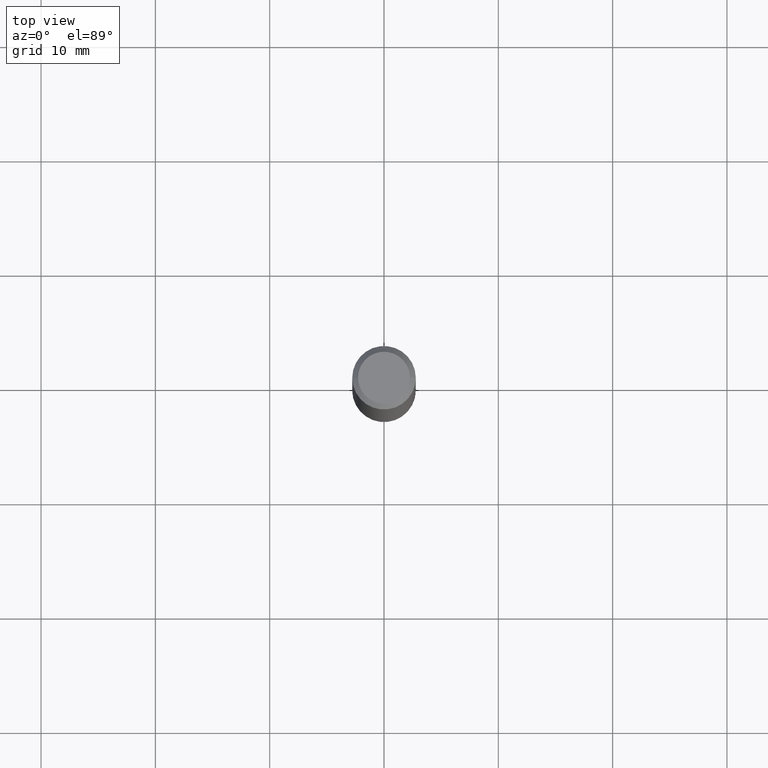
[diagram: clean part render]
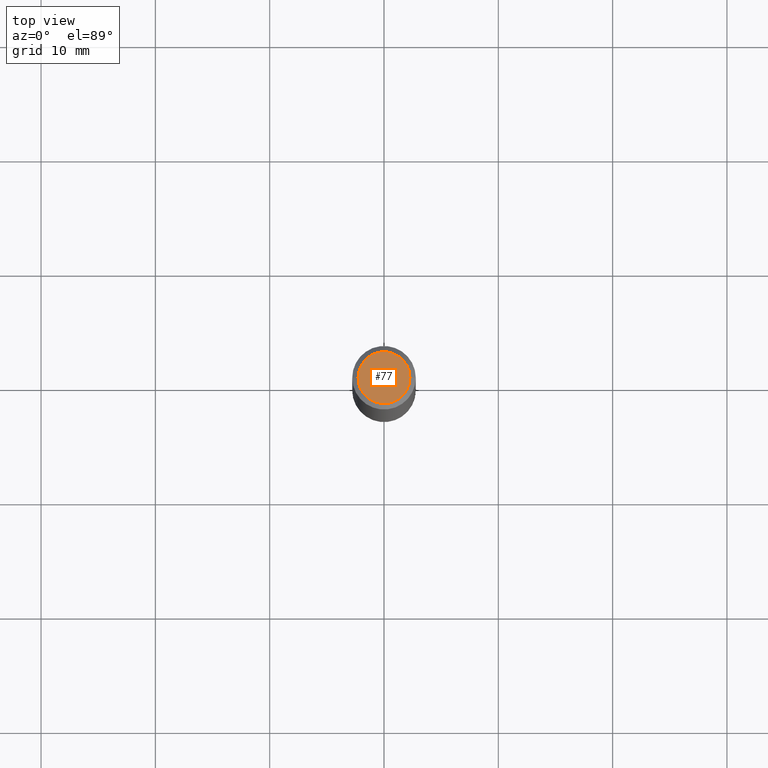
[diagram: same view with one face highlighted and labeled with its STEP entity id]
A machine part, top view. The second image highlights one B-rep face of the part: STEP entity #77.
In plain terms, the highlighted planar face has unit normal (0, -0, -1).
Its self-contained STEP definition (entity closure, byte-faithful):
#1 = DIRECTION ( 'NONE',  ( 2.438088387897960049E-29, -3.491481338843145188E-15, -1.000000000000000000 ) ) ;
#5 = PLANE ( 'NONE',  #42 ) ;
#7 = DIRECTION ( 'NONE',  ( -1.000000000000000000, 6.982962677686265922E-15, -4.876176775795935793E-29 ) ) ;
#42 = AXIS2_PLACEMENT_3D ( 'NONE', #246, #1, #7 ) ;
#50 = CARTESIAN_POINT ( 'NONE',  ( 0.08939999999999979907, -7.168483143669202998E-16, 4.689111625122773935E-30 ) ) ;
#58 = EDGE_LOOP ( 'NONE', ( #278, #378 ) ) ;
#74 = AXIS2_PLACEMENT_3D ( 'NONE', #210, #331, #79 ) ;
#77 = ADVANCED_FACE ( 'NONE', ( #283 ), #5, .F. ) ;
#79 = DIRECTION ( 'NONE',  ( 1.000000000000000000, -6.982962677686267499E-15, 4.876176775795935232E-29 ) ) ;
#120 = VERTEX_POINT ( 'NONE', #50 ) ;
#139 = AXIS2_PLACEMENT_3D ( 'NONE', #296, #346, #354 ) ;
#167 = EDGE_CURVE ( 'NONE', #120, #338, #207, .T. ) ;
#207 = CIRCLE ( 'NONE', #139, 0.08939999999999979907 ) ;
#210 = CARTESIAN_POINT ( 'NONE',  ( 0.000000000000000000, 0.000000000000000000, 0.000000000000000000 ) ) ;
#246 = CARTESIAN_POINT ( 'NONE',  ( 6.242768633851507782E-16, 0.08939999999999979907, -3.121384316925765724E-16 ) ) ;
#275 = CIRCLE ( 'NONE', #74, 0.08939999999999979907 ) ;
#278 = ORIENTED_EDGE ( 'NONE', *, *, #284, .T. ) ;
#283 = FACE_OUTER_BOUND ( 'NONE', #58, .T. ) ;
#284 = EDGE_CURVE ( 'NONE', #338, #120, #275, .T. ) ;
#296 = CARTESIAN_POINT ( 'NONE',  ( 0.000000000000000000, 0.000000000000000000, 0.000000000000000000 ) ) ;
#307 = CARTESIAN_POINT ( 'NONE',  ( -0.08939999999999979907, 6.591916767735819343E-16, -4.487804550905191468E-30 ) ) ;
#331 = DIRECTION ( 'NONE',  ( -2.445468806185136597E-29, 3.491481338843145583E-15, 1.000000000000000000 ) ) ;
#338 = VERTEX_POINT ( 'NONE', #307 ) ;
#346 = DIRECTION ( 'NONE',  ( -2.445468806185136597E-29, 3.491481338843145583E-15, 1.000000000000000000 ) ) ;
#354 = DIRECTION ( 'NONE',  ( 1.000000000000000000, -6.982962677686267499E-15, 4.876176775795935232E-29 ) ) ;
#378 = ORIENTED_EDGE ( 'NONE', *, *, #167, .T. ) ;